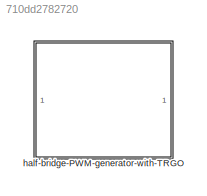
MODEL slx_710dd2782720
KIND library
CONFIG AbsTol = auto
CONFIG EnableMultiTasking = off
CONFIG FixedStep = auto
CONFIG MaxStep = auto
CONFIG MinStep = auto
CONFIG RelTol = 1e-3
CONFIG SampleTimeConstraint = Unconstrained
CONFIG SolverName = VariableStepAuto
CONFIG StartTime = 0.0
CONFIG StopTime = 10.0
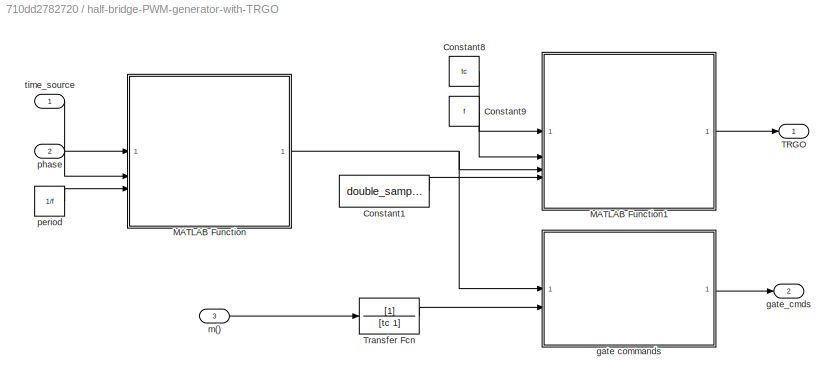
BLOCK [SubSystem] half-bridge-PWM-generator-with-TRGO
BLOCK [Constant] half-bridge-PWM-generator-with-TRGO/Constant1
  Value = double_sampling
BLOCK [Constant] half-bridge-PWM-generator-with-TRGO/Constant8
  Value = tc
BLOCK [Constant] half-bridge-PWM-generator-with-TRGO/Constant9
  Value = f
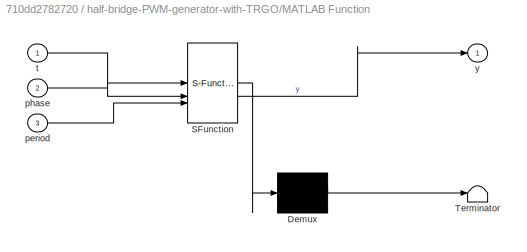
BLOCK [SubSystem] half-bridge-PWM-generator-with-TRGO/MATLAB Function
  ErrorFcn = Stateflow.Translate.translate
  PermitHierarchicalResolution = ExplicitOnly
  SFBlockType = MATLAB Function
  SystemSampleTime = tc
  TreatAsAtomicUnit = on
BLOCK [Demux] half-bridge-PWM-generator-with-TRGO/MATLAB Function/ Demux 
  Outputs = 1
BLOCK [S-Function] half-bridge-PWM-generator-with-TRGO/MATLAB Function/ SFunction 
  EnableBusSupport = off
  FunctionName = sf_sfun
  PortCounts = [3 2]
  SFcnIsStateOwnerBlock = off
  SFunctionDeploymentMode = off
  Tag = Stateflow S-Function 46
BLOCK [Terminator] half-bridge-PWM-generator-with-TRGO/MATLAB Function/ Terminator 
BLOCK [Inport] half-bridge-PWM-generator-with-TRGO/MATLAB Function/period
  Port = 3
BLOCK [Inport] half-bridge-PWM-generator-with-TRGO/MATLAB Function/phase
  Port = 2
BLOCK [Inport] half-bridge-PWM-generator-with-TRGO/MATLAB Function/t
BLOCK [Outport] half-bridge-PWM-generator-with-TRGO/MATLAB Function/y
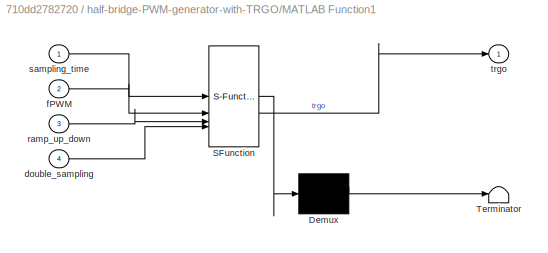
BLOCK [SubSystem] half-bridge-PWM-generator-with-TRGO/MATLAB Function1
  ErrorFcn = Stateflow.Translate.translate
  PermitHierarchicalResolution = ExplicitOnly
  SFBlockType = MATLAB Function
  SystemSampleTime = tc
  TreatAsAtomicUnit = on
BLOCK [Demux] half-bridge-PWM-generator-with-TRGO/MATLAB Function1/ Demux 
  Outputs = 1
BLOCK [S-Function] half-bridge-PWM-generator-with-TRGO/MATLAB Function1/ SFunction 
  EnableBusSupport = off
  FunctionName = sf_sfun
  PortCounts = [4 2]
  SFcnIsStateOwnerBlock = off
  SFunctionDeploymentMode = off
  Tag = Stateflow S-Function 1
BLOCK [Terminator] half-bridge-PWM-generator-with-TRGO/MATLAB Function1/ Terminator 
BLOCK [Inport] half-bridge-PWM-generator-with-TRGO/MATLAB Function1/double_sampling
  Port = 4
BLOCK [Inport] half-bridge-PWM-generator-with-TRGO/MATLAB Function1/fPWM
  Port = 2
BLOCK [Inport] half-bridge-PWM-generator-with-TRGO/MATLAB Function1/ramp_up_down
  Port = 3
BLOCK [Inport] half-bridge-PWM-generator-with-TRGO/MATLAB Function1/sampling_time
BLOCK [Outport] half-bridge-PWM-generator-with-TRGO/MATLAB Function1/trgo
BLOCK [Outport] half-bridge-PWM-generator-with-TRGO/TRGO
BLOCK [TransferFcn] half-bridge-PWM-generator-with-TRGO/Transfer Fcn
  Denominator = [tc 1]
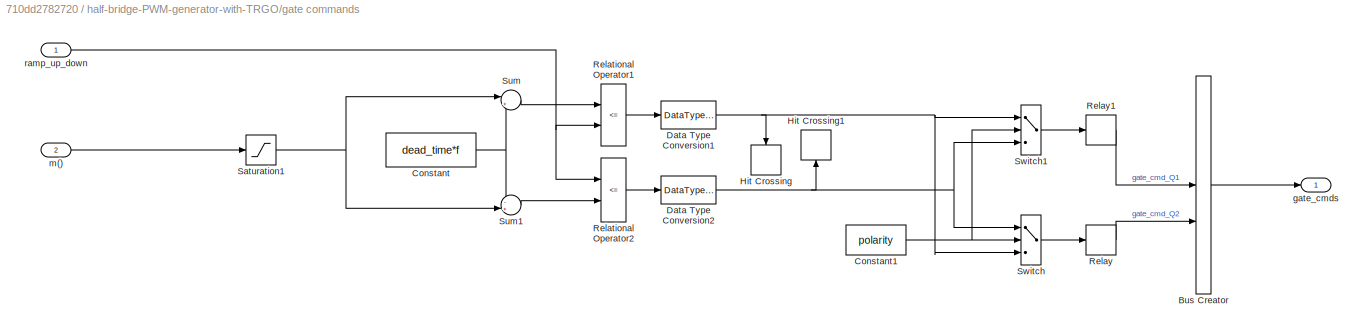
BLOCK [SubSystem] half-bridge-PWM-generator-with-TRGO/gate commands
BLOCK [BusCreator] half-bridge-PWM-generator-with-TRGO/gate commands/Bus Creator
  DisplayOption = bar
  InheritFromInputs = on
  Inputs = 2
BLOCK [Constant] half-bridge-PWM-generator-with-TRGO/gate commands/Constant
  Value = dead_time*f
BLOCK [Constant] half-bridge-PWM-generator-with-TRGO/gate commands/Constant1
  Value = polarity
BLOCK [DataTypeConversion] half-bridge-PWM-generator-with-TRGO/gate commands/Data Type Conversion1
BLOCK [DataTypeConversion] half-bridge-PWM-generator-with-TRGO/gate commands/Data Type Conversion2
BLOCK [HitCross] half-bridge-PWM-generator-with-TRGO/gate commands/Hit Crossing
  NameLocation = left
  ShowOutputPort = off
BLOCK [HitCross] half-bridge-PWM-generator-with-TRGO/gate commands/Hit Crossing1
  NameLocation = right
  ShowOutputPort = off
BLOCK [RelationalOperator] half-bridge-PWM-generator-with-TRGO/gate commands/Relational Operator1
  InputSameDT = off
  Operator = <=
BLOCK [RelationalOperator] half-bridge-PWM-generator-with-TRGO/gate commands/Relational Operator2
  InputSameDT = off
  Operator = <=
BLOCK [Relay] half-bridge-PWM-generator-with-TRGO/gate commands/Relay
  OffOutputValue = neg_cmd_gate
  OnOutputValue = pos_cmd_gate
BLOCK [Relay] half-bridge-PWM-generator-with-TRGO/gate commands/Relay1
  OffOutputValue = neg_cmd_gate
  OnOutputValue = pos_cmd_gate
BLOCK [Saturate] half-bridge-PWM-generator-with-TRGO/gate commands/Saturation1
  LowerLimit = m_low
  UpperLimit = m_up
BLOCK [Sum] half-bridge-PWM-generator-with-TRGO/gate commands/Sum
  Inputs = |++
  SaturateOnIntegerOverflow = on
BLOCK [Sum] half-bridge-PWM-generator-with-TRGO/gate commands/Sum1
  Inputs = -+|
  SaturateOnIntegerOverflow = on
BLOCK [Switch] half-bridge-PWM-generator-with-TRGO/gate commands/Switch
  Criteria = u2 > Threshold
  InputSameDT = off
  SaturateOnIntegerOverflow = off
BLOCK [Switch] half-bridge-PWM-generator-with-TRGO/gate commands/Switch1
  Criteria = u2 > Threshold
  InputSameDT = off
  SaturateOnIntegerOverflow = off
BLOCK [Outport] half-bridge-PWM-generator-with-TRGO/gate commands/gate_cmds
BLOCK [Inport] half-bridge-PWM-generator-with-TRGO/gate commands/m()
  Port = 2
BLOCK [Inport] half-bridge-PWM-generator-with-TRGO/gate commands/ramp_up_down
BLOCK [Outport] half-bridge-PWM-generator-with-TRGO/gate_cmds
  Port = 2
BLOCK [Inport] half-bridge-PWM-generator-with-TRGO/m()
  Port = 3
BLOCK [Constant] half-bridge-PWM-generator-with-TRGO/period
  Value = 1/f
BLOCK [Inport] half-bridge-PWM-generator-with-TRGO/phase
  Port = 2
BLOCK [Inport] half-bridge-PWM-generator-with-TRGO/time_source
LINE half-bridge-PWM-generator-with-TRGO/Constant1:1 -> half-bridge-PWM-generator-with-TRGO/MATLAB Function1:4
LINE half-bridge-PWM-generator-with-TRGO/Constant8:1 -> half-bridge-PWM-generator-with-TRGO/MATLAB Function1:1
LINE half-bridge-PWM-generator-with-TRGO/Constant9:1 -> half-bridge-PWM-generator-with-TRGO/MATLAB Function1:2
LINE half-bridge-PWM-generator-with-TRGO/MATLAB Function1:1 -> half-bridge-PWM-generator-with-TRGO/TRGO:1
NET half-bridge-PWM-generator-with-TRGO/MATLAB Function:1 -> half-bridge-PWM-generator-with-TRGO/MATLAB Function1:3, half-bridge-PWM-generator-with-TRGO/gate commands:1
LINE half-bridge-PWM-generator-with-TRGO/Transfer Fcn:1 -> half-bridge-PWM-generator-with-TRGO/gate commands:2
LINE half-bridge-PWM-generator-with-TRGO/gate commands/Bus Creator:1 -> half-bridge-PWM-generator-with-TRGO/gate commands/gate_cmds:1
NET half-bridge-PWM-generator-with-TRGO/gate commands/Constant1:1 -> half-bridge-PWM-generator-with-TRGO/gate commands/Switch1:2, half-bridge-PWM-generator-with-TRGO/gate commands/Switch:2
NET half-bridge-PWM-generator-with-TRGO/gate commands/Constant:1 -> half-bridge-PWM-generator-with-TRGO/gate commands/Sum1:1, half-bridge-PWM-generator-with-TRGO/gate commands/Sum:2
NET half-bridge-PWM-generator-with-TRGO/gate commands/Data Type Conversion1:1 -> half-bridge-PWM-generator-with-TRGO/gate commands/Hit Crossing:1, half-bridge-PWM-generator-with-TRGO/gate commands/Switch1:1, half-bridge-PWM-generator-with-TRGO/gate commands/Switch:3
NET half-bridge-PWM-generator-with-TRGO/gate commands/Data Type Conversion2:1 -> half-bridge-PWM-generator-with-TRGO/gate commands/Hit Crossing1:1, half-bridge-PWM-generator-with-TRGO/gate commands/Switch1:3, half-bridge-PWM-generator-with-TRGO/gate commands/Switch:1
LINE half-bridge-PWM-generator-with-TRGO/gate commands/Relational Operator1:1 -> half-bridge-PWM-generator-with-TRGO/gate commands/Data Type Conversion1:1
LINE half-bridge-PWM-generator-with-TRGO/gate commands/Relational Operator2:1 -> half-bridge-PWM-generator-with-TRGO/gate commands/Data Type Conversion2:1
LINE half-bridge-PWM-generator-with-TRGO/gate commands/Relay1:1 -> half-bridge-PWM-generator-with-TRGO/gate commands/Bus Creator:1
LINE half-bridge-PWM-generator-with-TRGO/gate commands/Relay:1 -> half-bridge-PWM-generator-with-TRGO/gate commands/Bus Creator:2
NET half-bridge-PWM-generator-with-TRGO/gate commands/Saturation1:1 -> half-bridge-PWM-generator-with-TRGO/gate commands/Sum1:2, half-bridge-PWM-generator-with-TRGO/gate commands/Sum:1
LINE half-bridge-PWM-generator-with-TRGO/gate commands/Sum1:1 -> half-bridge-PWM-generator-with-TRGO/gate commands/Relational Operator2:2
LINE half-bridge-PWM-generator-with-TRGO/gate commands/Sum:1 -> half-bridge-PWM-generator-with-TRGO/gate commands/Relational Operator1:1
LINE half-bridge-PWM-generator-with-TRGO/gate commands/Switch1:1 -> half-bridge-PWM-generator-with-TRGO/gate commands/Relay1:1
LINE half-bridge-PWM-generator-with-TRGO/gate commands/Switch:1 -> half-bridge-PWM-generator-with-TRGO/gate commands/Relay:1
LINE half-bridge-PWM-generator-with-TRGO/gate commands/m():1 -> half-bridge-PWM-generator-with-TRGO/gate commands/Saturation1:1
NET half-bridge-PWM-generator-with-TRGO/gate commands/ramp_up_down:1 -> half-bridge-PWM-generator-with-TRGO/gate commands/Relational Operator1:2, half-bridge-PWM-generator-with-TRGO/gate commands/Relational Operator2:1
LINE half-bridge-PWM-generator-with-TRGO/gate commands:1 -> half-bridge-PWM-generator-with-TRGO/gate_cmds:1
LINE half-bridge-PWM-generator-with-TRGO/m():1 -> half-bridge-PWM-generator-with-TRGO/Transfer Fcn:1
LINE half-bridge-PWM-generator-with-TRGO/period:1 -> half-bridge-PWM-generator-with-TRGO/MATLAB Function:3
LINE half-bridge-PWM-generator-with-TRGO/phase:1 -> half-bridge-PWM-generator-with-TRGO/MATLAB Function:2
LINE half-bridge-PWM-generator-with-TRGO/time_source:1 -> half-bridge-PWM-generator-with-TRGO/MATLAB Function:1
note: NET lines group one-source signal fan-out (src -> all destinations, sorted); 1:1 wires keep LINE
CHART half-bridge-PWM-generator-with-TRGO/MATLAB Function1 states=1 transitions=1
  STATE_LABEL 'eML_blk_kernel()'
  STATE_LABEL 'SCRIPT:\nfunction trgo = trgo_gen(sampling_time,fPWM, ramp_up_down, double_sampling)\n\nth = fPWM*sampling_time*2;\n\nif double_sampling\n    if (((ramp_up_down >= 0) && (ramp_up_down <= th)) || ...\n            ((ramp_up_down <= 1) && (ramp_up_down >= 1-th)))\n        trgo = 1;\n    else\n        trgo = 0;\n    end\nelse\n    if ((ramp_up_down >= 0) && (ramp_up_down <= th))\n        trgo = 1;\n    else\n        ...<+22ch>'
CHART half-bridge-PWM-generator-with-TRGO/MATLAB Function states=1 transitions=1
  STATE_LABEL 'eML_blk_kernel()'
  STATE_LABEL 'SCRIPT:\nfunction y = ramp_up_down(t,phase,period)\nx = sin(2*pi/period*t - phase -pi/2);\ny = asin(x)/pi + 1/2;\n'
CHART  states=0 transitions=0
CHART  states=0 transitions=0
